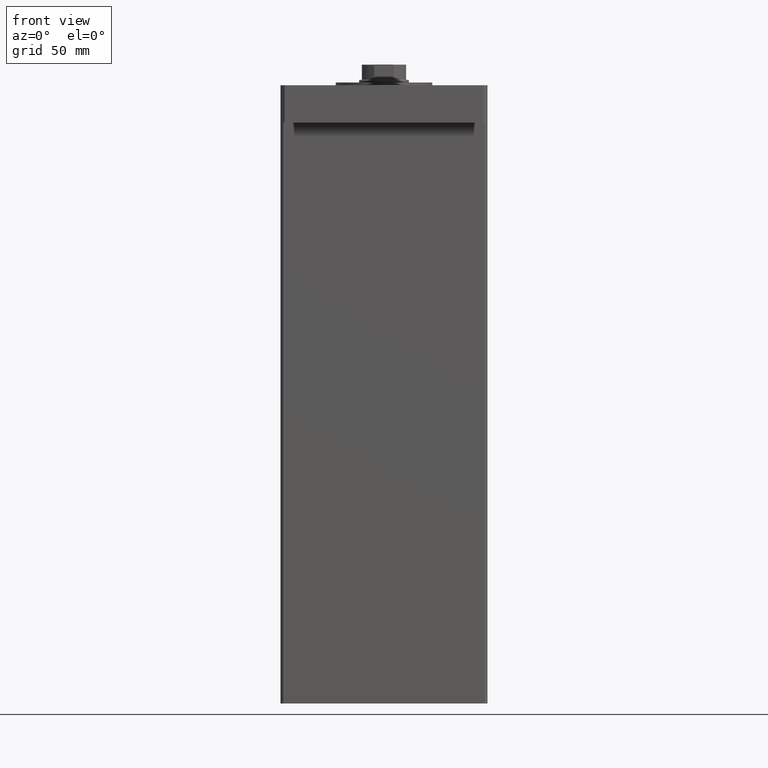
[diagram: clean part render]
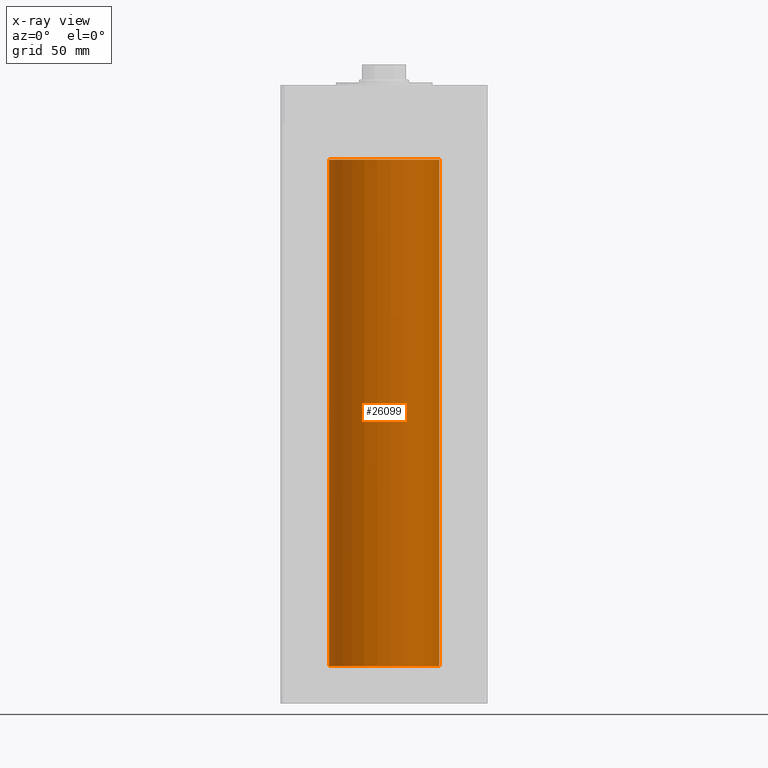
[diagram: x-ray — body ghosted, one internal face saturated and labeled with its STEP entity id]
A machine part, front view, then the same camera in x-ray: the body is ghosted and one INTERNAL B-rep face — a face not visible from any outside direction — is saturated and labeled: STEP entity #26099.
In plain terms, the highlighted cylindrical surface (partial cylindrical patch) has radius 40 mm, axis along (-0, -0, -1).
Its self-contained STEP definition (entity closure, byte-faithful):
#661 = DIRECTION ( 'NONE',  ( 1.000000000000000000, 0.000000000000000000, 0.000000000000000000 ) ) ;
#1951 = DIRECTION ( 'NONE',  ( 1.000000000000000000, 0.000000000000000000, 0.000000000000000000 ) ) ;
#3029 = VERTEX_POINT ( 'NONE', #42685 ) ;
#3556 = ORIENTED_EDGE ( 'NONE', *, *, #47497, .T. ) ;
#7185 = VECTOR ( 'NONE', #45125, 1000.000000000000000 ) ;
#7359 = FACE_OUTER_BOUND ( 'NONE', #15539, .T. ) ;
#9067 = CARTESIAN_POINT ( 'NONE',  ( -40.00000000000000000, 0.000000000000000000, 0.000000000000000000 ) ) ;
#9227 = CARTESIAN_POINT ( 'NONE',  ( 0.000000000000000000, 0.000000000000000000, 367.0000000000000000 ) ) ;
#9720 = LINE ( 'NONE', #38489, #7185 ) ;
#11502 = AXIS2_PLACEMENT_3D ( 'NONE', #52600, #40189, #24294 ) ;
#12023 = VERTEX_POINT ( 'NONE', #13842 ) ;
#13842 = CARTESIAN_POINT ( 'NONE',  ( 40.00000000000000000, 4.898587196589413026E-15, 0.000000000000000000 ) ) ;
#14021 = AXIS2_PLACEMENT_3D ( 'NONE', #50453, #21868, #661 ) ;
#15539 = EDGE_LOOP ( 'NONE', ( #43289, #3556, #33831, #34121 ) ) ;
#21448 = VERTEX_POINT ( 'NONE', #22208 ) ;
#21868 = DIRECTION ( 'NONE',  ( -0.000000000000000000, 0.000000000000000000, 1.000000000000000000 ) ) ;
#22208 = CARTESIAN_POINT ( 'NONE',  ( 40.00000000000000000, 4.898587196589413026E-15, 367.0000000000000000 ) ) ;
#23754 = EDGE_CURVE ( 'NONE', #3029, #21448, #41439, .T. ) ;
#24294 = DIRECTION ( 'NONE',  ( -1.000000000000000000, 0.000000000000000000, 0.000000000000000000 ) ) ;
#25095 = AXIS2_PLACEMENT_3D ( 'NONE', #9227, #43105, #1951 ) ;
#26099 = ADVANCED_FACE ( 'NONE', ( #7359 ), #39923, .F. ) ;
#26915 = DIRECTION ( 'NONE',  ( -0.000000000000000000, -0.000000000000000000, -1.000000000000000000 ) ) ;
#33831 = ORIENTED_EDGE ( 'NONE', *, *, #45899, .F. ) ;
#34121 = ORIENTED_EDGE ( 'NONE', *, *, #42751, .F. ) ;
#35417 = VECTOR ( 'NONE', #26915, 1000.000000000000000 ) ;
#38489 = CARTESIAN_POINT ( 'NONE',  ( 40.00000000000000000, 4.898587196589413026E-15, 367.0000000000000000 ) ) ;
#39923 = CYLINDRICAL_SURFACE ( 'NONE', #11502, 40.00000000000000000 ) ;
#40189 = DIRECTION ( 'NONE',  ( -0.000000000000000000, -0.000000000000000000, -1.000000000000000000 ) ) ;
#41439 = CIRCLE ( 'NONE', #25095, 40.00000000000000000 ) ;
#42685 = CARTESIAN_POINT ( 'NONE',  ( -40.00000000000000000, 0.000000000000000000, 367.0000000000000000 ) ) ;
#42751 = EDGE_CURVE ( 'NONE', #3029, #46518, #51999, .T. ) ;
#43105 = DIRECTION ( 'NONE',  ( -0.000000000000000000, 0.000000000000000000, 1.000000000000000000 ) ) ;
#43289 = ORIENTED_EDGE ( 'NONE', *, *, #23754, .T. ) ;
#45125 = DIRECTION ( 'NONE',  ( -0.000000000000000000, -0.000000000000000000, -1.000000000000000000 ) ) ;
#45899 = EDGE_CURVE ( 'NONE', #46518, #12023, #46671, .T. ) ;
#46518 = VERTEX_POINT ( 'NONE', #9067 ) ;
#46671 = CIRCLE ( 'NONE', #14021, 40.00000000000000000 ) ;
#47497 = EDGE_CURVE ( 'NONE', #21448, #12023, #9720, .T. ) ;
#48202 = CARTESIAN_POINT ( 'NONE',  ( -40.00000000000000000, 0.000000000000000000, 367.0000000000000000 ) ) ;
#50453 = CARTESIAN_POINT ( 'NONE',  ( 0.000000000000000000, 0.000000000000000000, 0.000000000000000000 ) ) ;
#51999 = LINE ( 'NONE', #48202, #35417 ) ;
#52600 = CARTESIAN_POINT ( 'NONE',  ( 0.000000000000000000, 0.000000000000000000, 367.0000000000000000 ) ) ;